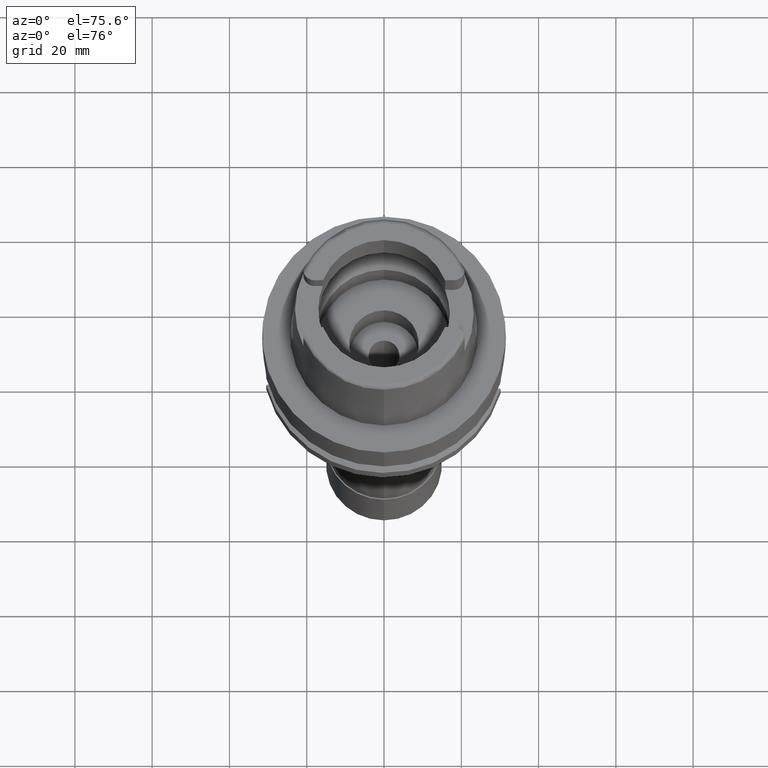
[diagram: clean part render]
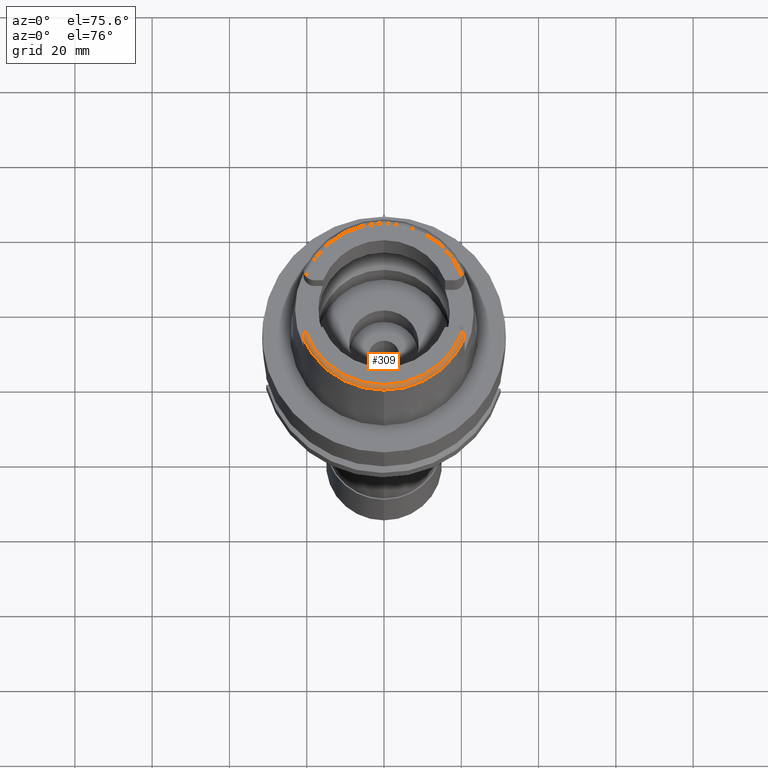
[diagram: same view with one face highlighted and labeled with its STEP entity id]
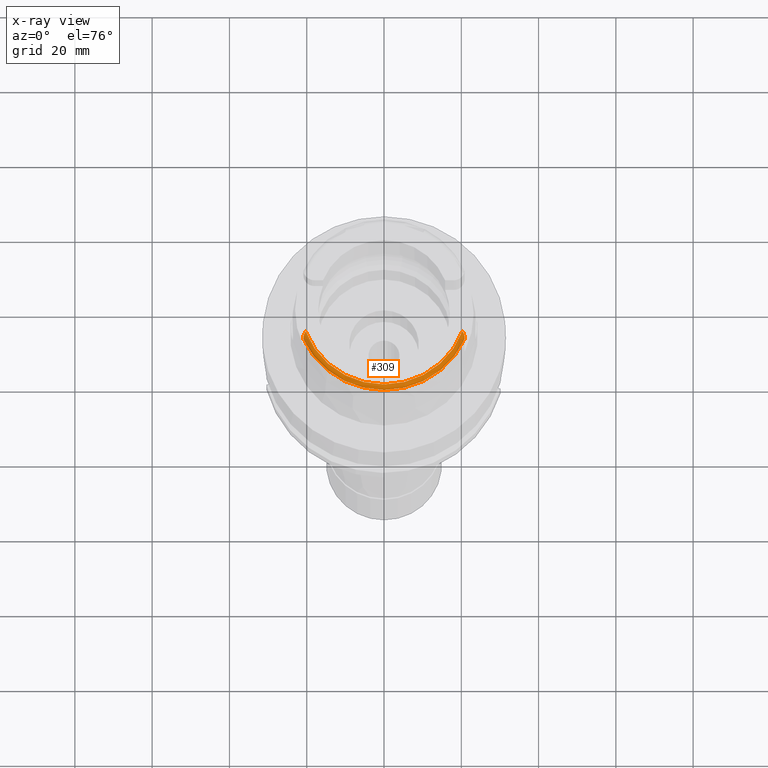
[diagram: x-ray of the same camera — body ghosted, the highlighted face saturated]
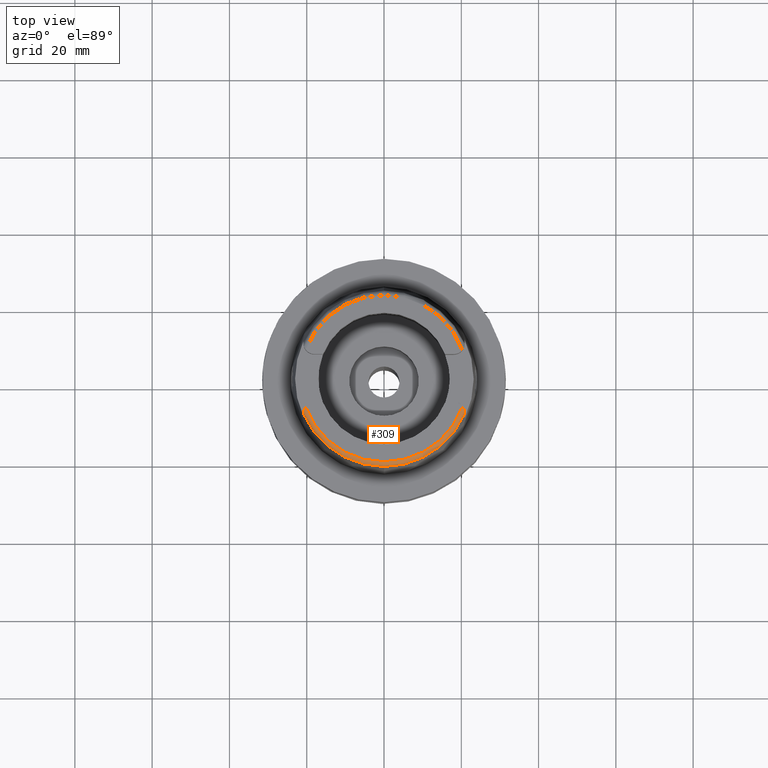
[diagram: same view with one face highlighted and labeled with its STEP entity id]
A machine part, auxiliary view. The second image highlights one B-rep face of the part: STEP entity #309.
The next image is the same camera in x-ray: the body ghosted, the highlighted face saturated — about 0% of this face is hidden behind the body in this view.
A second angle (top view) of the same face is appended — the face is thin or edge-on in the first view.
In plain terms, the highlighted toroidal blend (fillet) surface has major radius 21.5735 mm and minor (blend) radius 1.2 mm.
Its self-contained STEP definition (entity closure, byte-faithful):
#28 = CARTESIAN_POINT ( 'NONE',  ( -20.77614118818172528, -8.420108871670757722, 31.65340074013538896 ) ) ;
#54 = CARTESIAN_POINT ( 'NONE',  ( -20.67965178588811881, -8.119685460314538972, 31.81357210729679608 ) ) ;
#68 = VERTEX_POINT ( 'NONE', #2163 ) ;
#81 = CARTESIAN_POINT ( 'NONE',  ( -20.65352981426240930, -8.054460418928469423, 31.84214433673108857 ) ) ;
#100 = DIRECTION ( 'NONE',  ( 0.0000000000000000000, 0.0000000000000000000, -1.000000000000000000 ) ) ;
#146 = CARTESIAN_POINT ( 'NONE',  ( 20.28174256341000259, -7.352969181062000814, 32.00000000000000000 ) ) ;
#147 = DIRECTION ( 'NONE',  ( 0.0000000000000000000, 0.0000000000000000000, 1.000000000000000000 ) ) ;
#276 = CARTESIAN_POINT ( 'NONE',  ( 0.0000000000000000000, 0.0000000000000000000, 32.00000000000000000 ) ) ;
#309 = ADVANCED_FACE ( 'NONE', ( #4673 ), #4494, .T. ) ;
#388 = CARTESIAN_POINT ( 'NONE',  ( 20.86950661929888895, -8.953444956909379471, 31.20480463678571681 ) ) ;
#399 = VERTEX_POINT ( 'NONE', #4259 ) ;
#469 = VERTEX_POINT ( 'NONE', #2850 ) ;
#497 = CARTESIAN_POINT ( 'NONE',  ( -20.75806010890481446, -8.354746637725291691, 31.69198065253882390 ) ) ;
#665 = CARTESIAN_POINT ( 'NONE',  ( 20.40793366596435021, -7.525261722119656049, 31.99026078729719913 ) ) ;
#672 = CIRCLE ( 'NONE', #3748, 22.77198729362000051 ) ;
#692 = CARTESIAN_POINT ( 'NONE',  ( 20.82060919618262673, -8.540883659736952183, 31.56015214545297809 ) ) ;
#724 = CARTESIAN_POINT ( 'NONE',  ( 20.74420599865646508, -8.238767406362692114, 31.74036130499716180 ) ) ;
#913 = CARTESIAN_POINT ( 'NONE',  ( -20.26871835884000106, -7.388795116668999796, 32.00000000000000000 ) ) ;
#940 = CARTESIAN_POINT ( 'NONE',  ( -20.83349082347066172, -8.692551768129106904, 31.46257921059888929 ) ) ;
#955 = CARTESIAN_POINT ( 'NONE',  ( 0.0000000000000000000, 0.0000000000000000000, 30.80000000000000071 ) ) ;
#966 = CARTESIAN_POINT ( 'NONE',  ( -20.86537741700701076, -8.985394151746788793, 31.16250578139071692 ) ) ;
#980 = B_SPLINE_CURVE_WITH_KNOTS ( 'NONE', 3,
 ( #3199, #3147, #665, #2371, #4904, #2920, #2867, #3279, #2011, #4047, #2044, #724, #3664, #3305, #4526, #3227, #2428, #1147, #692, #2100, #3326, #2398, #388, #3252, #5301 ),
 .UNSPECIFIED., .F., .F.,
 ( 4, 2, 1, 1, 2, 2, 2, 1, 1, 1, 2, 2, 2, 2, 4 ),
 ( 0.0000000000000000000, 0.1249999999999763245, 0.1874999999999644729, 0.2187499999999576172, 0.2343749999999544809, 0.2499999999999513167, 0.3749999999999386602, 0.4374999999999326650, 0.4687499999999296674, 0.4843749999999309996, 0.4921874999999292233, 0.4999999999999273914, 0.6249999999999470424, 0.7499999999999665823, 1.000000000000000000 ),
 .UNSPECIFIED. ) ;
#1134 = CARTESIAN_POINT ( 'NONE',  ( 20.86999753952999725, -9.103314344536000746, 30.90743588161999966 ) ) ;
#1147 = CARTESIAN_POINT ( 'NONE',  ( 20.80314363503408259, -8.461766011046554681, 31.61070110143742440 ) ) ;
#1165 = ORIENTED_EDGE ( 'NONE', *, *, #5240, .F. ) ;
#1284 = CIRCLE ( 'NONE', #2442, 21.57348458609000375 ) ;
#1286 = CARTESIAN_POINT ( 'NONE',  ( -20.66410887192872536, -8.080542293388276676, 31.83086814682254584 ) ) ;
#1298 = CARTESIAN_POINT ( 'NONE',  ( 20.87000000000000099, -9.070000000000000284, 31.00584217417999966 ) ) ;
#1310 = CARTESIAN_POINT ( 'NONE',  ( -20.86946298991860260, -9.089146696065091291, 30.96909655035004860 ) ) ;
#1338 = CARTESIAN_POINT ( 'NONE',  ( -20.86785146195546403, -9.037501647706669416, 31.07975895370924846 ) ) ;
#1387 = CARTESIAN_POINT ( 'NONE',  ( -20.86836235410804363, -9.052108646033788730, 31.05200728422930823 ) ) ;
#1464 = CARTESIAN_POINT ( 'NONE',  ( 0.0000000000000000000, -22.77198729362000051, 30.85992712280000205 ) ) ;
#1589 = VERTEX_POINT ( 'NONE', #1464 ) ;
#1622 = ORIENTED_EDGE ( 'NONE', *, *, #3638, .F. ) ;
#1635 = CIRCLE ( 'NONE', #2955, 22.77198729362001117 ) ;
#1788 = CARTESIAN_POINT ( 'NONE',  ( -20.83061412860829265, -8.674976600179878261, 31.47655940249403272 ) ) ;
#1810 = CARTESIAN_POINT ( 'NONE',  ( -20.80926769389949982, -8.560181547653947121, 31.56216484242520437 ) ) ;
#1877 = AXIS2_PLACEMENT_3D ( 'NONE', #955, #147, #5198 ) ;
#2011 = CARTESIAN_POINT ( 'NONE',  ( 20.61698427068358797, -7.906802672721733316, 31.88737674238811692 ) ) ;
#2044 = CARTESIAN_POINT ( 'NONE',  ( 20.69889322935506115, -8.101381509286513349, 31.80921175852918736 ) ) ;
#2100 = CARTESIAN_POINT ( 'NONE',  ( 20.83276702186228135, -8.610329218644000804, 31.51136022184265073 ) ) ;
#2102 = B_SPLINE_CURVE_WITH_KNOTS ( 'NONE', 3,
 ( #4738, #3828, #1310, #1387, #1338, #3058, #966, #3401, #2151, #4684, #4214, #940, #1788, #4271, #4326, #1810, #5045, #3799, #28, #2999, #3084, #497, #4657, #4296, #54, #1286, #81, #2176, #4243, #5130, #913 ),
 .UNSPECIFIED., .F., .F.,
 ( 4, 2, 2, 2, 2, 2, 2, 2, 2, 1, 2, 2, 1, 1, 2, 2, 4 ),
 ( 0.0000000000000000000, 0.1249999999999868716, 0.1874999999999803491, 0.2499999999999738542, 0.3749999999999590328, 0.4374999999999480416, 0.4687499999999394928, 0.4999999999999309441, 0.5624999999999155120, 0.5937499999999090727, 0.6093749999999076294, 0.6249999999999060751, 0.6874999999999116262, 0.7187499999999158451, 0.7343749999999187317, 0.7499999999999216183, 1.000000000000000000 ),
 .UNSPECIFIED. ) ;
#2151 = CARTESIAN_POINT ( 'NONE',  ( -20.85667696932822679, -8.866683392084992121, 31.30714293911843171 ) ) ;
#2163 = CARTESIAN_POINT ( 'NONE',  ( 20.87000527243999670, -9.110771420352000050, 30.85992623711999983 ) ) ;
#2176 = CARTESIAN_POINT ( 'NONE',  ( -20.64880414333666891, -8.043016559813302990, 31.84699788531703035 ) ) ;
#2371 = CARTESIAN_POINT ( 'NONE',  ( 20.49358380399787549, -7.666689952861897694, 31.96104314918880007 ) ) ;
#2398 = CARTESIAN_POINT ( 'NONE',  ( 20.85723117850873720, -8.797882461166366852, 31.35911389864746468 ) ) ;
#2414 = CARTESIAN_POINT ( 'NONE',  ( 20.87000000000000099, -9.070000000000000284, 31.00584217417999966 ) ) ;
#2428 = CARTESIAN_POINT ( 'NONE',  ( 20.80165455757976289, -8.455103990899266009, 31.61493212915889828 ) ) ;
#2442 = AXIS2_PLACEMENT_3D ( 'NONE', #276, #2514, #4156 ) ;
#2514 = DIRECTION ( 'NONE',  ( 0.0000000000000000000, 0.0000000000000000000, -1.000000000000000000 ) ) ;
#2516 = CARTESIAN_POINT ( 'NONE',  ( 0.0000000000000000000, 0.0000000000000000000, 30.85992712280000205 ) ) ;
#2826 = CARTESIAN_POINT ( 'NONE',  ( 20.87000527243999670, -9.108806814011000341, 30.87564600996000053 ) ) ;
#2850 = CARTESIAN_POINT ( 'NONE',  ( -20.86974104061000190, -9.111384044320999465, 30.85992600342000003 ) ) ;
#2867 = CARTESIAN_POINT ( 'NONE',  ( 20.59808277463092097, -7.866255159697126409, 31.90184699697964277 ) ) ;
#2908 = EDGE_CURVE ( 'NONE', #469, #399, #2102, .T. ) ;
#2920 = CARTESIAN_POINT ( 'NONE',  ( 20.57960222994603328, -7.827698350332848776, 31.91508623924749344 ) ) ;
#2955 = AXIS2_PLACEMENT_3D ( 'NONE', #4237, #100, #4267 ) ;
#2999 = CARTESIAN_POINT ( 'NONE',  ( -20.76702868243576106, -8.386686865472597674, 31.67331283088777028 ) ) ;
#3058 = CARTESIAN_POINT ( 'NONE',  ( -20.86633511416392039, -9.003776789203838504, 31.13549180904284697 ) ) ;
#3084 = CARTESIAN_POINT ( 'NONE',  ( -20.76077369355330404, -8.364284794899601749, 31.68645555349294085 ) ) ;
#3147 = CARTESIAN_POINT ( 'NONE',  ( 20.34647858825694300, -7.436356980484119639, 32.00000000000001421 ) ) ;
#3199 = CARTESIAN_POINT ( 'NONE',  ( 20.28174256341000259, -7.352969181062000814, 32.00000000000000000 ) ) ;
#3227 = CARTESIAN_POINT ( 'NONE',  ( 20.79908046498315244, -8.443778362237747359, 31.62206676974011543 ) ) ;
#3241 = CARTESIAN_POINT ( 'NONE',  ( 20.87000000000000099, -9.077214112354001330, 30.98932781922000146 ) ) ;
#3252 = CARTESIAN_POINT ( 'NONE',  ( 20.87000000000000810, -9.027036592525677250, 31.10419286883675838 ) ) ;
#3279 = CARTESIAN_POINT ( 'NONE',  ( 20.61023614072320242, -7.892118636999001957, 31.89271648507077117 ) ) ;
#3305 = CARTESIAN_POINT ( 'NONE',  ( 20.78561109726937772, -8.387055121196951291, 31.65701813620632521 ) ) ;
#3326 = CARTESIAN_POINT ( 'NONE',  ( 20.85103705024431875, -8.738319778264283855, 31.41134350337217285 ) ) ;
#3399 = EDGE_CURVE ( 'NONE', #68, #1589, #1635, .T. ) ;
#3401 = CARTESIAN_POINT ( 'NONE',  ( -20.86107070274921327, -8.919100623934641092, 31.24969525402957871 ) ) ;
#3638 = EDGE_CURVE ( 'NONE', #3767, #68, #4504, .T. ) ;
#3650 = EDGE_LOOP ( 'NONE', ( #3960, #5267, #1622, #1165, #4199, #4064 ) ) ;
#3664 = CARTESIAN_POINT ( 'NONE',  ( 20.76486633046879149, -8.307374727319896124, 31.70370071377212540 ) ) ;
#3745 = DIRECTION ( 'NONE',  ( 0.0000000000000000000, -1.000000000000000000, 0.0000000000000000000 ) ) ;
#3748 = AXIS2_PLACEMENT_3D ( 'NONE', #2516, #4609, #3745 ) ;
#3767 = VERTEX_POINT ( 'NONE', #1298 ) ;
#3799 = CARTESIAN_POINT ( 'NONE',  ( -20.78446763944827325, -8.452973029488479284, 31.63289462884903003 ) ) ;
#3828 = CARTESIAN_POINT ( 'NONE',  ( -20.86965272744387789, -9.104793697374004680, 30.91428176051131871 ) ) ;
#3960 = ORIENTED_EDGE ( 'NONE', *, *, #5411, .F. ) ;
#3971 = EDGE_CURVE ( 'NONE', #4789, #399, #1284, .T. ) ;
#4047 = CARTESIAN_POINT ( 'NONE',  ( 20.66335691365699390, -8.009556062118749153, 31.84915108899317460 ) ) ;
#4064 = ORIENTED_EDGE ( 'NONE', *, *, #2908, .F. ) ;
#4156 = DIRECTION ( 'NONE',  ( 0.9401236264118068009, -0.3408336354621024911, 0.0000000000000000000 ) ) ;
#4199 = ORIENTED_EDGE ( 'NONE', *, *, #3971, .T. ) ;
#4214 = CARTESIAN_POINT ( 'NONE',  ( -20.84142196810350711, -8.743812171734115068, 31.42051139178781582 ) ) ;
#4237 = CARTESIAN_POINT ( 'NONE',  ( 0.0000000000000000000, 0.0000000000000000000, 30.85992712280000205 ) ) ;
#4243 = CARTESIAN_POINT ( 'NONE',  ( -20.54374590166020553, -7.794549855384691028, 31.94969295853166003 ) ) ;
#4259 = CARTESIAN_POINT ( 'NONE',  ( -20.26871835884000106, -7.388795116668999796, 32.00000000000000000 ) ) ;
#4267 = DIRECTION ( 'NONE',  ( 0.9164775804687985694, -0.4000860463675992573, 0.0000000000000000000 ) ) ;
#4271 = CARTESIAN_POINT ( 'NONE',  ( -20.82433886333661732, -8.638864924109684651, 31.50443495753382095 ) ) ;
#4296 = CARTESIAN_POINT ( 'NONE',  ( -20.71365676806220790, -8.211120967803697823, 31.77054239909615774 ) ) ;
#4326 = CARTESIAN_POINT ( 'NONE',  ( -20.82124328095353150, -8.621889672318582498, 31.51719248295926334 ) ) ;
#4485 = CARTESIAN_POINT ( 'NONE',  ( 20.87000527243999670, -9.110771420352000050, 30.85992623711999983 ) ) ;
#4494 = TOROIDAL_SURFACE ( 'NONE', #1877, 21.57348458609000019, 1.199999999999999956 ) ;
#4504 = B_SPLINE_CURVE_WITH_KNOTS ( 'NONE', 3,
 ( #2414, #3241, #4890, #1134, #2826, #4485 ),
 .UNSPECIFIED., .F., .F.,
 ( 4, 1, 1, 4 ),
 ( 0.0000000000000000000, 0.3333333333333000081, 0.6666666666667000474, 1.000000000000000000 ),
 .UNSPECIFIED. ) ;
#4526 = CARTESIAN_POINT ( 'NONE',  ( 20.79516158804493386, -8.426780430089033658, 31.63269887547261305 ) ) ;
#4609 = DIRECTION ( 'NONE',  ( 0.0000000000000000000, 0.0000000000000000000, -1.000000000000000000 ) ) ;
#4657 = CARTESIAN_POINT ( 'NONE',  ( -20.73898994512866167, -8.289529716323073671, 31.72907873611190155 ) ) ;
#4673 = FACE_OUTER_BOUND ( 'NONE', #3650, .T. ) ;
#4684 = CARTESIAN_POINT ( 'NONE',  ( -20.84577899114760058, -8.776031230689886442, 31.39229652174616092 ) ) ;
#4738 = CARTESIAN_POINT ( 'NONE',  ( -20.86974104061000190, -9.111384044320999465, 30.85992600342000003 ) ) ;
#4789 = VERTEX_POINT ( 'NONE', #146 ) ;
#4890 = CARTESIAN_POINT ( 'NONE',  ( 20.87000070298999788, -9.089776163735999504, 30.95646462580000247 ) ) ;
#4904 = CARTESIAN_POINT ( 'NONE',  ( 20.53477413931090112, -7.739417662604058279, 31.94278212537107109 ) ) ;
#5045 = CARTESIAN_POINT ( 'NONE',  ( -20.80013550055389260, -8.517922148226290346, 31.59109037889762917 ) ) ;
#5130 = CARTESIAN_POINT ( 'NONE',  ( -20.41285784115554236, -7.575288628972243643, 32.00000000000000711 ) ) ;
#5198 = DIRECTION ( 'NONE',  ( -0.0006539142454762719193, -0.9999997861980568503, 0.0000000000000000000 ) ) ;
#5240 = EDGE_CURVE ( 'NONE', #4789, #3767, #980, .T. ) ;
#5267 = ORIENTED_EDGE ( 'NONE', *, *, #3399, .F. ) ;
#5301 = CARTESIAN_POINT ( 'NONE',  ( 20.87000000000000099, -9.070000000000000284, 31.00584217417999966 ) ) ;
#5411 = EDGE_CURVE ( 'NONE', #1589, #469, #672, .T. ) ;